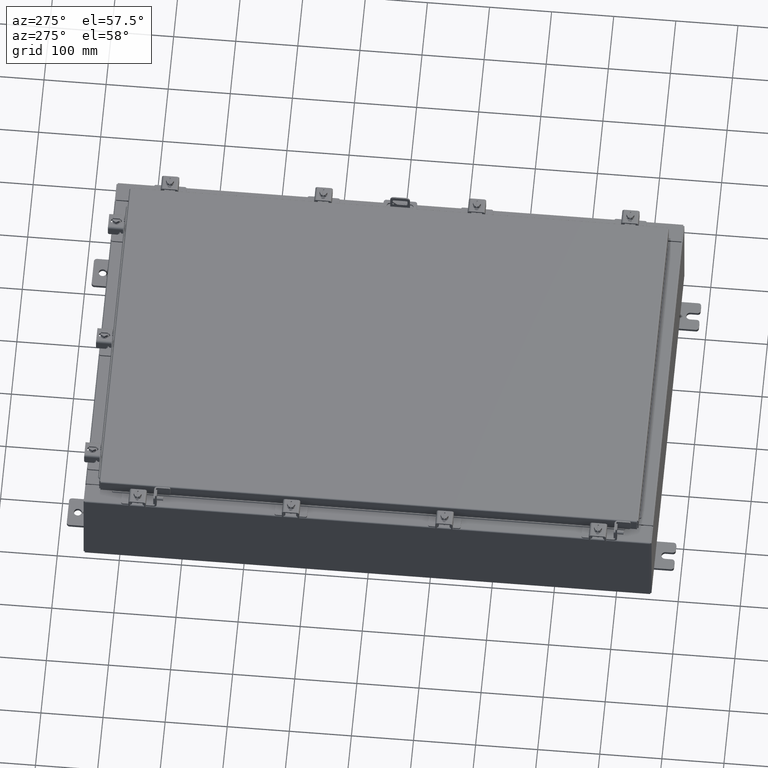
[diagram: clean part render]
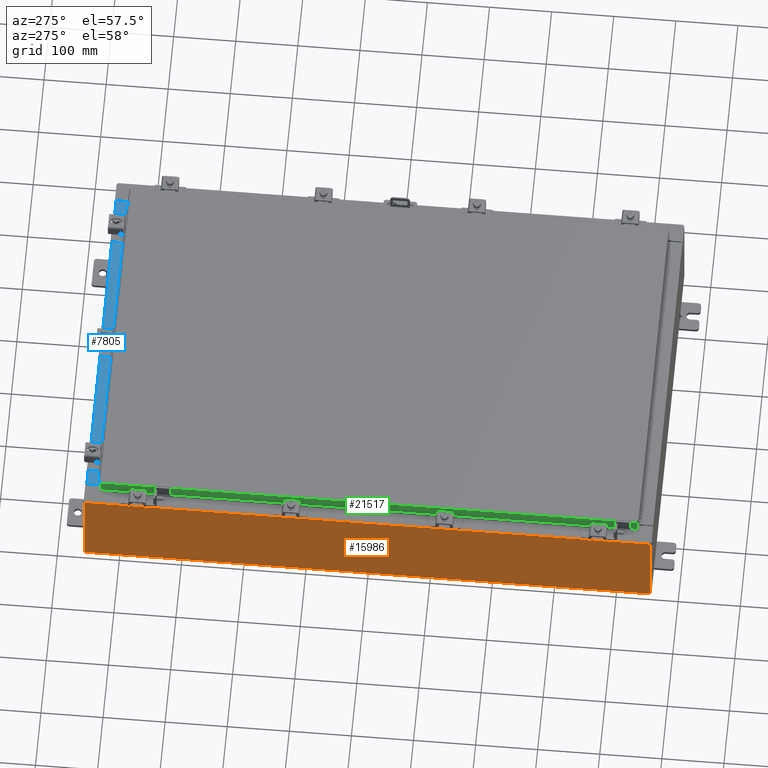
[diagram: same view with three faces highlighted in distinct colors, each labeled with its STEP entity id]
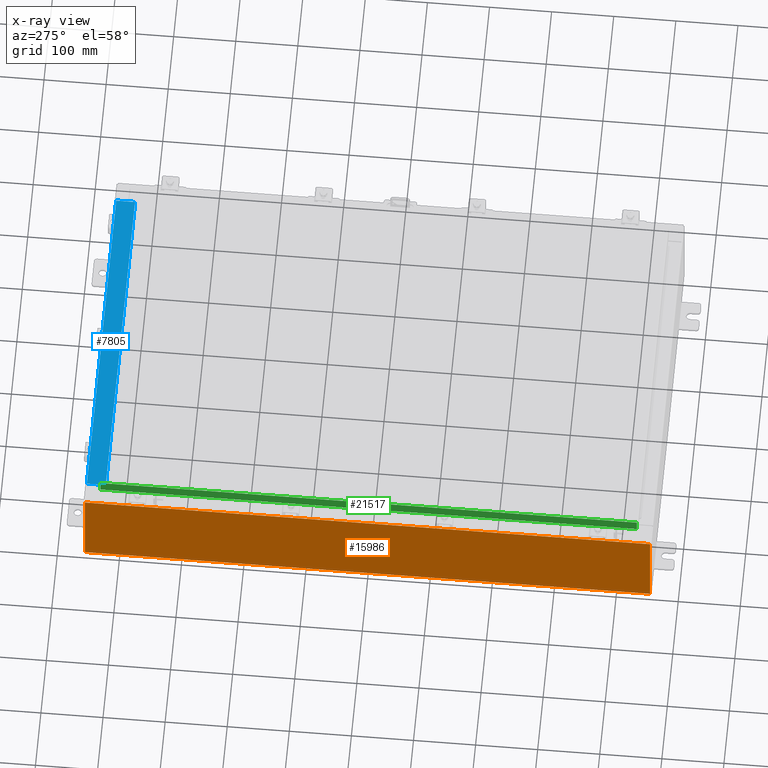
[diagram: x-ray of the same camera — body ghosted, the three highlighted faces saturated]
A machine part, auxiliary view with three faces highlighted in distinct colors.
The next image is the same camera in x-ray (body ghosted, the three faces saturated) — at least one of them is partly hidden behind the body in this view.
Their STEP definitions:

[orange] entity #15986 — the highlighted planar face has unit normal (1, 0, 0).
#647 = ORIENTED_EDGE ( 'NONE', *, *, #13040, .T. ) ;
#2376 = CARTESIAN_POINT ( 'NONE',  ( -12.00000000000002100, -17.92530000000000400, 5.837599999999999200 ) ) ;
#2502 = ORIENTED_EDGE ( 'NONE', *, *, #18829, .F. ) ;
#2578 = ORIENTED_EDGE ( 'NONE', *, *, #14500, .T. ) ;
#3461 = DIRECTION ( 'NONE',  ( 1.000000000000000000, 0.0000000000000000000, 3.319545939341922800E-015 ) ) ;
#4717 = CARTESIAN_POINT ( 'NONE',  ( -12.00000000000000200, 17.92529999999999600, 0.01299999999999986400 ) ) ;
#6916 = CARTESIAN_POINT ( 'NONE',  ( -12.00000000000000200, 0.0000000000000000000, -4.009536492811464800E-014 ) ) ;
#8064 = AXIS2_PLACEMENT_3D ( 'NONE', #6916, #3461, #16023 ) ;
#8787 = PLANE ( 'NONE',  #8064 ) ;
#9872 = CARTESIAN_POINT ( 'NONE',  ( -12.00000000000002100, -17.92530000000000400, 5.837599999999999200 ) ) ;
#11685 = DIRECTION ( 'NONE',  ( 0.0000000000000000000, 1.000000000000000000, 0.0000000000000000000 ) ) ;
#12209 = LINE ( 'NONE', #13665, #16988 ) ;
#13040 = EDGE_CURVE ( 'NONE', #16646, #17068, #16592, .T. ) ;
#13665 = CARTESIAN_POINT ( 'NONE',  ( -12.00000000000000200, -17.92530000000000400, -4.009536492811464800E-014 ) ) ;
#14034 = VECTOR ( 'NONE', #17286, 39.37007874015748100 ) ;
#14402 = FACE_OUTER_BOUND ( 'NONE', #20507, .T. ) ;
#14500 = EDGE_CURVE ( 'NONE', #15532, #21682, #12209, .T. ) ;
#14547 = CARTESIAN_POINT ( 'NONE',  ( -12.00000000000000200, -17.92530000000000400, 0.01299999999999986400 ) ) ;
#15133 = VECTOR ( 'NONE', #11685, 39.37007874015748100 ) ;
#15532 = VERTEX_POINT ( 'NONE', #14547 ) ;
#15759 = DIRECTION ( 'NONE',  ( 3.319545939341922800E-015, 0.0000000000000000000, -1.000000000000000000 ) ) ;
#15986 = ADVANCED_FACE ( 'NONE', ( #14402 ), #8787, .F. ) ;
#16023 = DIRECTION ( 'NONE',  ( 3.319545939341922800E-015, 0.0000000000000000000, -1.000000000000000000 ) ) ;
#16269 = CARTESIAN_POINT ( 'NONE',  ( -12.00000000000000200, 17.92529999999999600, 0.01299999999999985900 ) ) ;
#16277 = LINE ( 'NONE', #9872, #15133 ) ;
#16592 = LINE ( 'NONE', #21010, #20775 ) ;
#16598 = CARTESIAN_POINT ( 'NONE',  ( -12.00000000000002100, 17.92529999999999600, 5.837599999999999200 ) ) ;
#16646 = VERTEX_POINT ( 'NONE', #16598 ) ;
#16988 = VECTOR ( 'NONE', #22612, 39.37007874015748100 ) ;
#17068 = VERTEX_POINT ( 'NONE', #16269 ) ;
#17286 = DIRECTION ( 'NONE',  ( -0.0000000000000000000, 1.000000000000000000, -0.0000000000000000000 ) ) ;
#18380 = ORIENTED_EDGE ( 'NONE', *, *, #21806, .T. ) ;
#18829 = EDGE_CURVE ( 'NONE', #15532, #17068, #23023, .T. ) ;
#20507 = EDGE_LOOP ( 'NONE', ( #18380, #647, #2502, #2578 ) ) ;
#20775 = VECTOR ( 'NONE', #15759, 39.37007874015748100 ) ;
#21010 = CARTESIAN_POINT ( 'NONE',  ( -12.00000000000000200, 17.92529999999999600, -4.009536492811464800E-014 ) ) ;
#21682 = VERTEX_POINT ( 'NONE', #2376 ) ;
#21806 = EDGE_CURVE ( 'NONE', #21682, #16646, #16277, .T. ) ;
#22612 = DIRECTION ( 'NONE',  ( -3.319545939341922800E-015, 0.0000000000000000000, 1.000000000000000000 ) ) ;
#23023 = LINE ( 'NONE', #4717, #14034 ) ;

[blue] entity #7805 — the highlighted planar face has unit normal (0, 0, 1).
#58 = EDGE_CURVE ( 'NONE', #20597, #13492, #12056, .T. ) ;
#934 = EDGE_LOOP ( 'NONE', ( #7120, #2602, #6499, #18177 ) ) ;
#1687 = LINE ( 'NONE', #1913, #10656 ) ;
#1913 = CARTESIAN_POINT ( 'NONE',  ( -10.63720000000000200, -0.07469999999999973900, 3.000000000000000900 ) ) ;
#2173 = AXIS2_PLACEMENT_3D ( 'NONE', #20844, #6572, #19120 ) ;
#2295 = CARTESIAN_POINT ( 'NONE',  ( -10.63720000000000200, -1.287299999999999200, 3.000000000000005300 ) ) ;
#2483 = LINE ( 'NONE', #18910, #16260 ) ;
#2602 = ORIENTED_EDGE ( 'NONE', *, *, #23122, .F. ) ;
#2717 = LINE ( 'NONE', #11756, #11702 ) ;
#2796 = DIRECTION ( 'NONE',  ( -1.000000000000000000, 2.568202152506545800E-017, -9.159187855938968600E-032 ) ) ;
#3027 = CARTESIAN_POINT ( 'NONE',  ( 10.63720000000000400, -0.08769999999999965300, 3.000000000000000900 ) ) ;
#4122 = CARTESIAN_POINT ( 'NONE',  ( 10.63720000000000200, -1.300299999999999800, 3.000000000000005300 ) ) ;
#6318 = DIRECTION ( 'NONE',  ( -0.0000000000000000000, -1.000000000000000000, 3.566381192773190000E-015 ) ) ;
#6433 = DIRECTION ( 'NONE',  ( -1.000000000000000000, 0.0000000000000000000, 0.0000000000000000000 ) ) ;
#6499 = ORIENTED_EDGE ( 'NONE', *, *, #58, .F. ) ;
#6572 = DIRECTION ( 'NONE',  ( 0.0000000000000000000, 3.566381192773190000E-015, 1.000000000000000000 ) ) ;
#7120 = ORIENTED_EDGE ( 'NONE', *, *, #18435, .F. ) ;
#7805 = ADVANCED_FACE ( 'NONE', ( #11484 ), #17318, .T. ) ;
#10656 = VECTOR ( 'NONE', #16291, 39.37007874015748100 ) ;
#11484 = FACE_OUTER_BOUND ( 'NONE', #934, .T. ) ;
#11702 = VECTOR ( 'NONE', #6433, 39.37007874015748100 ) ;
#11756 = CARTESIAN_POINT ( 'NONE',  ( 10.63720000000000400, -1.287299999999999900, 3.000000000000005300 ) ) ;
#12056 = LINE ( 'NONE', #4122, #21049 ) ;
#13030 = CARTESIAN_POINT ( 'NONE',  ( -10.63720000000000200, -0.08770000000000000000, 3.000000000000000900 ) ) ;
#13492 = VERTEX_POINT ( 'NONE', #17871 ) ;
#15644 = VERTEX_POINT ( 'NONE', #2295 ) ;
#16260 = VECTOR ( 'NONE', #2796, 39.37007874015748100 ) ;
#16291 = DIRECTION ( 'NONE',  ( -0.0000000000000000000, 1.000000000000000000, -3.566381192773190000E-015 ) ) ;
#17318 = PLANE ( 'NONE',  #2173 ) ;
#17871 = CARTESIAN_POINT ( 'NONE',  ( 10.63720000000000200, -1.287299999999999900, 3.000000000000005300 ) ) ;
#17915 = VERTEX_POINT ( 'NONE', #13030 ) ;
#18177 = ORIENTED_EDGE ( 'NONE', *, *, #22319, .T. ) ;
#18435 = EDGE_CURVE ( 'NONE', #15644, #17915, #1687, .T. ) ;
#18910 = CARTESIAN_POINT ( 'NONE',  ( -2.252313287748515100E-018, -0.08770000000000000000, 3.000000000000001300 ) ) ;
#19120 = DIRECTION ( 'NONE',  ( 0.0000000000000000000, -1.000000000000000000, 3.566381192773190000E-015 ) ) ;
#20597 = VERTEX_POINT ( 'NONE', #3027 ) ;
#20844 = CARTESIAN_POINT ( 'NONE',  ( 0.0000000000000000000, 1.069354855923099900E-014, 3.000000000000000900 ) ) ;
#21049 = VECTOR ( 'NONE', #6318, 39.37007874015748100 ) ;
#22319 = EDGE_CURVE ( 'NONE', #20597, #17915, #2483, .T. ) ;
#23122 = EDGE_CURVE ( 'NONE', #13492, #15644, #2717, .T. ) ;

[green] entity #21517 — the highlighted planar face has unit normal (1, 0, -0).
#169 = DIRECTION ( 'NONE',  ( -2.818880942772360100E-015, 0.0000000000000000000, -1.000000000000000000 ) ) ;
#194 = ORIENTED_EDGE ( 'NONE', *, *, #20177, .F. ) ;
#359 = LINE ( 'NONE', #2217, #18904 ) ;
#665 = VERTEX_POINT ( 'NONE', #4665 ) ;
#730 = DIRECTION ( 'NONE',  ( -0.0000000000000000000, 1.000000000000000000, -0.0000000000000000000 ) ) ;
#1157 = DIRECTION ( 'NONE',  ( -2.818880942772360900E-015, 6.982962677686269100E-015, -1.000000000000000000 ) ) ;
#1897 = VERTEX_POINT ( 'NONE', #17097 ) ;
#2182 = VECTOR ( 'NONE', #9165, 39.37007874015748100 ) ;
#2217 = CARTESIAN_POINT ( 'NONE',  ( -11.07800000000000300, -17.09400000000000100, -0.08770000000000007000 ) ) ;
#2639 = CARTESIAN_POINT ( 'NONE',  ( -11.07800000000000500, -17.09400000000000100, -0.8499999999999996400 ) ) ;
#4199 = LINE ( 'NONE', #16936, #8388 ) ;
#4665 = CARTESIAN_POINT ( 'NONE',  ( -11.07800000000000500, 17.00515786437626900, -0.8499999999999953100 ) ) ;
#5715 = LINE ( 'NONE', #11912, #18908 ) ;
#5996 = ORIENTED_EDGE ( 'NONE', *, *, #7705, .F. ) ;
#6176 = DIRECTION ( 'NONE',  ( -2.818880942772360900E-015, 6.982962677686269100E-015, -1.000000000000000000 ) ) ;
#7003 = EDGE_CURVE ( 'NONE', #13647, #7806, #11241, .T. ) ;
#7186 = ORIENTED_EDGE ( 'NONE', *, *, #7003, .F. ) ;
#7384 = CARTESIAN_POINT ( 'NONE',  ( -11.07800000000000500, -17.09400000000000100, -0.8499999999999996400 ) ) ;
#7688 = EDGE_CURVE ( 'NONE', #11798, #665, #4199, .T. ) ;
#7705 = EDGE_CURVE ( 'NONE', #13295, #13647, #12636, .T. ) ;
#7806 = VERTEX_POINT ( 'NONE', #22658 ) ;
#8388 = VECTOR ( 'NONE', #6176, 39.37007874015748100 ) ;
#8402 = EDGE_LOOP ( 'NONE', ( #21723, #11816, #194, #7186, #5996, #22228 ) ) ;
#9165 = DIRECTION ( 'NONE',  ( -6.392530697705073700E-017, 1.000000000000000000, 1.238552822680358100E-016 ) ) ;
#9437 = DIRECTION ( 'NONE',  ( 6.392530697705108200E-017, -1.000000000000000000, -1.742455305178657700E-031 ) ) ;
#10022 = LINE ( 'NONE', #7384, #2182 ) ;
#10914 = DIRECTION ( 'NONE',  ( 1.000000000000000000, 6.392530697705108200E-017, -2.818880942772360100E-015 ) ) ;
#11241 = LINE ( 'NONE', #11502, #21350 ) ;
#11296 = EDGE_CURVE ( 'NONE', #1897, #13295, #5715, .T. ) ;
#11502 = CARTESIAN_POINT ( 'NONE',  ( -11.07799999999999800, -16.25515786437626200, -0.8500000000000014200 ) ) ;
#11764 = FACE_OUTER_BOUND ( 'NONE', #8402, .T. ) ;
#11798 = VERTEX_POINT ( 'NONE', #12205 ) ;
#11816 = ORIENTED_EDGE ( 'NONE', *, *, #7688, .T. ) ;
#11912 = CARTESIAN_POINT ( 'NONE',  ( -11.07800000000000300, -17.00515786437626900, -0.07469999999999978000 ) ) ;
#12205 = CARTESIAN_POINT ( 'NONE',  ( -11.07800000000000500, 17.00515786437626900, -0.08770000000000007000 ) ) ;
#12636 = LINE ( 'NONE', #2639, #22176 ) ;
#13295 = VERTEX_POINT ( 'NONE', #20079 ) ;
#13647 = VERTEX_POINT ( 'NONE', #20058 ) ;
#15194 = DIRECTION ( 'NONE',  ( -6.392530697705073700E-017, 1.000000000000000000, 1.238552822680358100E-016 ) ) ;
#15634 = EDGE_CURVE ( 'NONE', #11798, #1897, #359, .T. ) ;
#16141 = AXIS2_PLACEMENT_3D ( 'NONE', #16276, #10914, #169 ) ;
#16276 = CARTESIAN_POINT ( 'NONE',  ( -11.07800000000000300, -7.081645506917719700E-016, 3.148837674004379600E-014 ) ) ;
#16936 = CARTESIAN_POINT ( 'NONE',  ( -11.07800000000000300, 17.00515786437626500, 1.502347594351463900E-013 ) ) ;
#17097 = CARTESIAN_POINT ( 'NONE',  ( -11.07800000000000300, -17.00515786437626900, -0.08770000000000007000 ) ) ;
#18904 = VECTOR ( 'NONE', #9437, 39.37007874015748100 ) ;
#18908 = VECTOR ( 'NONE', #1157, 39.37007874015748100 ) ;
#20058 = CARTESIAN_POINT ( 'NONE',  ( -11.07799999999999800, -16.25515786437626500, -0.8500000000000014200 ) ) ;
#20079 = CARTESIAN_POINT ( 'NONE',  ( -11.07800000000000500, -17.00515786437626500, -0.8499999999999996400 ) ) ;
#20177 = EDGE_CURVE ( 'NONE', #7806, #665, #10022, .T. ) ;
#21350 = VECTOR ( 'NONE', #730, 39.37007874015748100 ) ;
#21517 = ADVANCED_FACE ( 'NONE', ( #11764 ), #21691, .F. ) ;
#21691 = PLANE ( 'NONE',  #16141 ) ;
#21723 = ORIENTED_EDGE ( 'NONE', *, *, #15634, .F. ) ;
#22176 = VECTOR ( 'NONE', #15194, 39.37007874015748100 ) ;
#22228 = ORIENTED_EDGE ( 'NONE', *, *, #11296, .F. ) ;
#22658 = CARTESIAN_POINT ( 'NONE',  ( -11.07799999999999800, 16.25515786437626200, -0.8500000000000014200 ) ) ;